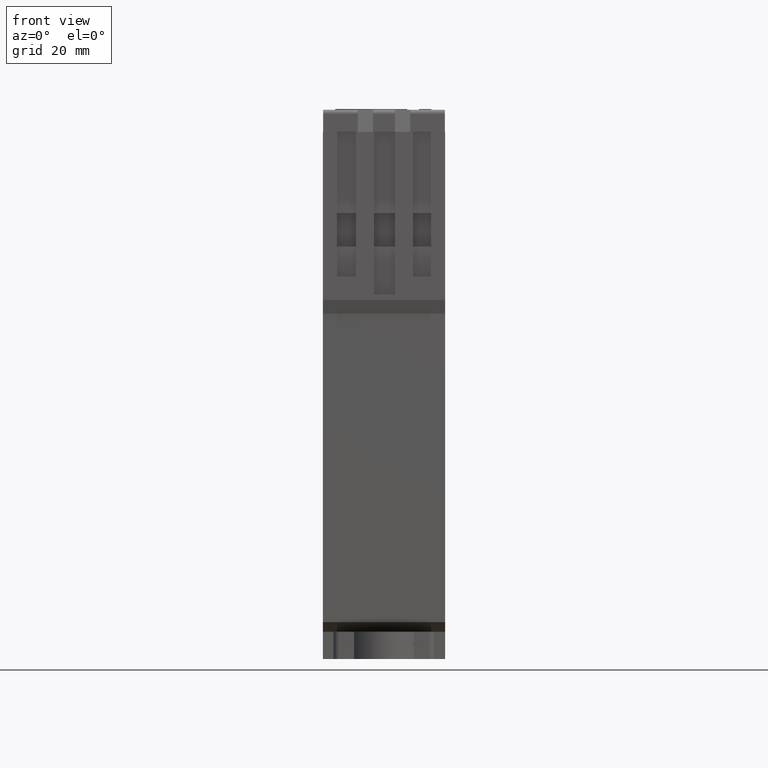
[diagram: clean part render]
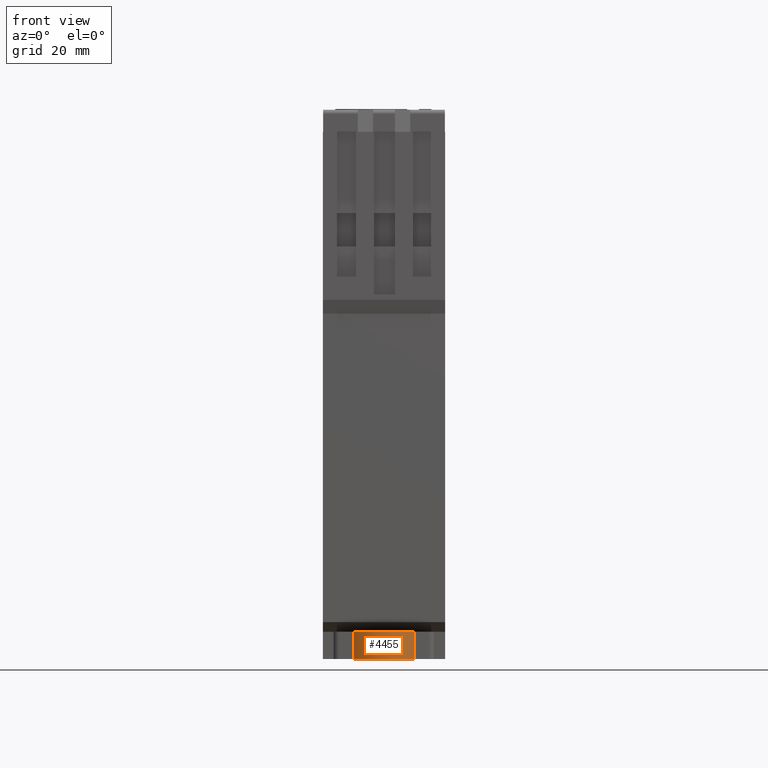
[diagram: same view with one face highlighted and labeled with its STEP entity id]
A machine part, front view. The second image highlights one B-rep face of the part: STEP entity #4455.
In plain terms, the highlighted cylindrical surface (edge-blend (fillet) strip) has radius 6.35 mm, axis along (0, 0, 1).
Its self-contained STEP definition (entity closure, byte-faithful):
#284=CARTESIAN_POINT('',(-2.471412890261E-1,-4.002191995062E1,
1.738632682514E-2));
#285=DIRECTION('',(0.E0,0.E0,-1.E0));
#286=DIRECTION('',(0.E0,-1.E0,0.E0));
#287=AXIS2_PLACEMENT_3D('',#284,#285,#286);
#289=CARTESIAN_POINT('',(-2.471412890261E-1,-4.002191995062E1,
1.738632682514E-2));
#290=DIRECTION('',(0.E0,0.E0,-1.E0));
#291=DIRECTION('',(8.660254037844E-1,-5.E-1,0.E0));
#292=AXIS2_PLACEMENT_3D('',#289,#290,#291);
#437=CARTESIAN_POINT('',(-2.471412890261E-1,-4.002191995062E1,
5.017386326831E0));
#438=DIRECTION('',(0.E0,0.E0,1.E0));
#439=DIRECTION('',(0.E0,-1.E0,0.E0));
#440=AXIS2_PLACEMENT_3D('',#437,#438,#439);
#442=CARTESIAN_POINT('',(-2.471412890261E-1,-4.002191995062E1,
5.017386326831E0));
#443=DIRECTION('',(0.E0,0.E0,1.E0));
#444=DIRECTION('',(-8.660254037844E-1,-5.E-1,0.E0));
#445=AXIS2_PLACEMENT_3D('',#442,#443,#444);
#520=DIRECTION('',(0.E0,0.E0,-1.E0));
#521=VECTOR('',#520,5.000000000005E0);
#522=CARTESIAN_POINT('',(-5.746402603057E0,-4.319691995062E1,5.017386326831E0));
#523=LINE('',#522,#521);
#524=DIRECTION('',(0.E0,0.E0,1.E0));
#525=VECTOR('',#524,5.000000000005E0);
#526=CARTESIAN_POINT('',(5.252120025005E0,-4.319691995062E1,1.738632682514E-2));
#527=LINE('',#526,#525);
#3235=CARTESIAN_POINT('',(5.252120025005E0,-4.319691995062E1,
1.738632682514E-2));
#3236=VERTEX_POINT('',#3235);
#3289=CARTESIAN_POINT('',(-2.471412890261E-1,-4.637191995062E1,
1.738632682514E-2));
#3290=CARTESIAN_POINT('',(-5.746402603057E0,-4.319691995062E1,
1.738632682514E-2));
#3291=VERTEX_POINT('',#3289);
#3292=VERTEX_POINT('',#3290);
#3363=CARTESIAN_POINT('',(5.252120025005E0,-4.319691995062E1,5.017386326831E0));
#3364=VERTEX_POINT('',#3363);
#3449=CARTESIAN_POINT('',(-5.746402603057E0,-4.319691995062E1,
5.017386326831E0));
#3450=VERTEX_POINT('',#3449);
#3527=CARTESIAN_POINT('',(-2.471412890262E-1,-4.637191995062E1,
5.017386326831E0));
#3528=VERTEX_POINT('',#3527);
#4441=CARTESIAN_POINT('',(-2.471412890261E-1,-4.002191995062E1,
-2.326136731751E-1));
#4442=DIRECTION('',(0.E0,0.E0,1.E0));
#4443=DIRECTION('',(0.E0,1.E0,0.E0));
#4444=AXIS2_PLACEMENT_3D('',#4441,#4442,#4443);
#4445=CYLINDRICAL_SURFACE('',#4444,6.35E0);
#4447=ORIENTED_EDGE('',*,*,#4446,.F.);
#4448=ORIENTED_EDGE('',*,*,#4361,.T.);
#4449=ORIENTED_EDGE('',*,*,#4359,.T.);
#4450=ORIENTED_EDGE('',*,*,#4436,.F.);
#4451=ORIENTED_EDGE('',*,*,#4234,.T.);
#4452=ORIENTED_EDGE('',*,*,#4232,.T.);
#4453=EDGE_LOOP('',(#4447,#4448,#4449,#4450,#4451,#4452));
#4454=FACE_OUTER_BOUND('',#4453,.F.);
#4455=ADVANCED_FACE('',(#4454),#4445,.T.);
#288=CIRCLE('',#287,6.35E0);
#293=CIRCLE('',#292,6.35E0);
#441=CIRCLE('',#440,6.35E0);
#446=CIRCLE('',#445,6.35E0);
#4232=EDGE_CURVE('',#3291,#3292,#288,.T.);
#4234=EDGE_CURVE('',#3236,#3291,#293,.T.);
#4359=EDGE_CURVE('',#3528,#3364,#441,.T.);
#4361=EDGE_CURVE('',#3450,#3528,#446,.T.);
#4436=EDGE_CURVE('',#3236,#3364,#527,.T.);
#4446=EDGE_CURVE('',#3450,#3292,#523,.T.);